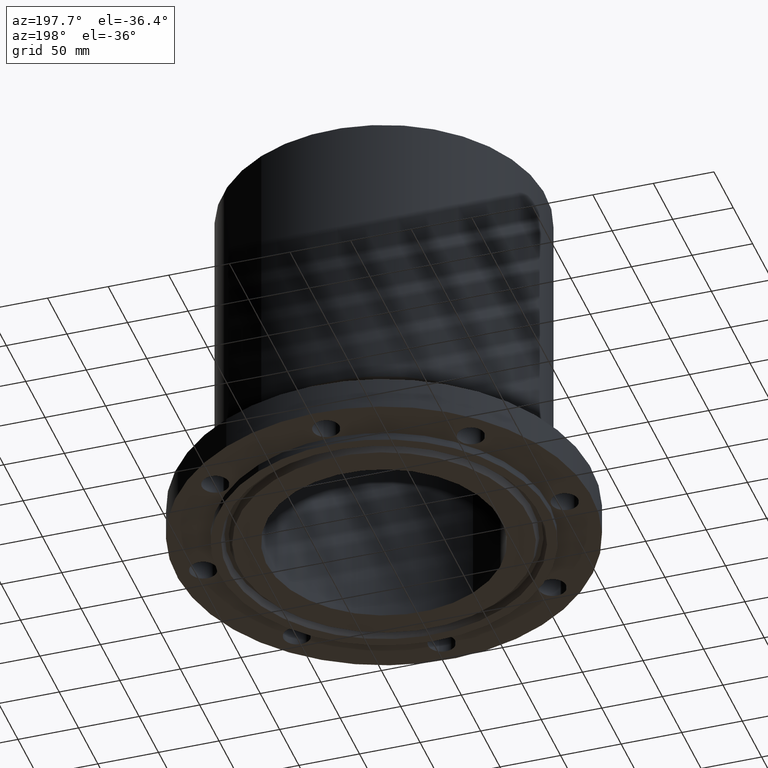
[diagram: clean part render]
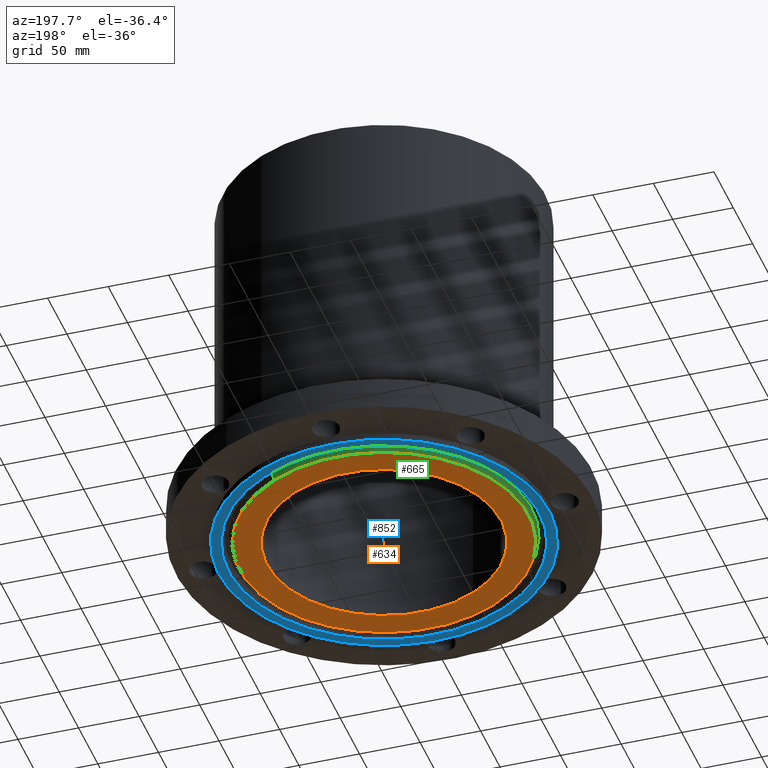
[diagram: same view with three faces highlighted in distinct colors, each labeled with its STEP entity id]
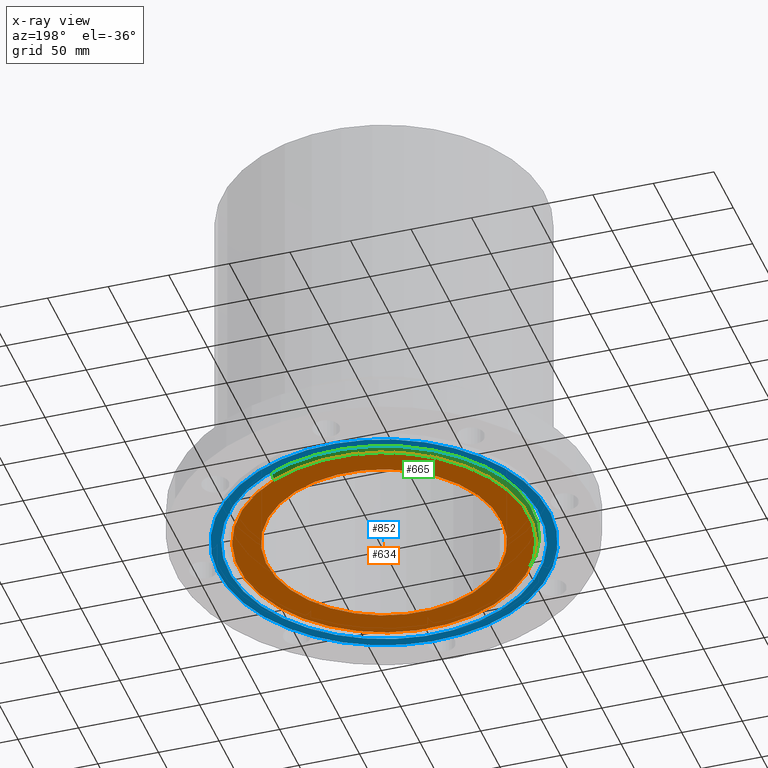
[diagram: x-ray of the same camera — body ghosted, the three highlighted faces saturated]
A machine part, auxiliary view with three faces highlighted in distinct colors.
The next image is the same camera in x-ray (body ghosted, the three faces saturated) — at least one of them is partly hidden behind the body in this view.
Their STEP definitions:

[orange] entity #634 — the highlighted planar face has unit normal (0, 0, -1).
#578=AXIS2_PLACEMENT_3D('Circle Axis2P3D',#576,#577,$) ;
#597=AXIS2_PLACEMENT_3D('Circle Axis2P3D',#595,#596,$) ;
#610=AXIS2_PLACEMENT_3D('Plane Axis2P3D',#607,#608,#609) ;
#614=AXIS2_PLACEMENT_3D('Circle Axis2P3D',#612,#613,$) ;
#623=AXIS2_PLACEMENT_3D('Circle Axis2P3D',#621,#622,$) ;
#573=CARTESIAN_POINT('Vertex',(1.82661130209,3.34358956082,-0.250000000001)) ;
#576=CARTESIAN_POINT('Axis2P3D Location',(0.,0.,-0.250000000001)) ;
#580=CARTESIAN_POINT('Vertex',(-1.82661130209,-3.34358956082,-0.250000000001)) ;
#595=CARTESIAN_POINT('Axis2P3D Location',(0.,0.,-0.250000000001)) ;
#607=CARTESIAN_POINT('Axis2P3D Location',(0.,4.70300000002,-0.250000000001)) ;
#612=CARTESIAN_POINT('Axis2P3D Location',(0.,0.,-0.250000000001)) ;
#616=CARTESIAN_POINT('Vertex',(-2.25473830806,-4.12727078859,-0.250000000001)) ;
#618=CARTESIAN_POINT('Vertex',(2.25473830806,4.12727078859,-0.250000000001)) ;
#621=CARTESIAN_POINT('Axis2P3D Location',(0.,0.,-0.250000000001)) ;
#577=DIRECTION('Axis2P3D Direction',(0.,0.,-0.0393700787402)) ;
#596=DIRECTION('Axis2P3D Direction',(0.,0.,-0.0393700787402)) ;
#608=DIRECTION('Axis2P3D Direction',(0.,0.,-0.0393700787402)) ;
#609=DIRECTION('Axis2P3D XDirection',(0.0393700787402,0.,0.)) ;
#613=DIRECTION('Axis2P3D Direction',(0.,0.,-0.0393700787402)) ;
#622=DIRECTION('Axis2P3D Direction',(0.,0.,-0.0393700787402)) ;
#627=ORIENTED_EDGE('',*,*,#620,.T.) ;
#628=ORIENTED_EDGE('',*,*,#625,.T.) ;
#631=ORIENTED_EDGE('',*,*,#582,.F.) ;
#632=ORIENTED_EDGE('',*,*,#599,.F.) ;
#633=FACE_BOUND('',#630,.T.) ;
#634=ADVANCED_FACE('PartBody',(#629,#633),#611,.T.) ;
#579=CIRCLE('generated circle',#578,3.81000000002) ;
#598=CIRCLE('generated circle',#597,3.81000000002) ;
#615=CIRCLE('generated circle',#614,4.70300000002) ;
#624=CIRCLE('generated circle',#623,4.70300000002) ;
#582=EDGE_CURVE('',#574,#581,#579,.T.) ;
#599=EDGE_CURVE('',#581,#574,#598,.T.) ;
#620=EDGE_CURVE('',#617,#619,#615,.T.) ;
#625=EDGE_CURVE('',#619,#617,#624,.T.) ;
#626=EDGE_LOOP('',(#627,#628)) ;
#630=EDGE_LOOP('',(#631,#632)) ;
#629=FACE_OUTER_BOUND('',#626,.T.) ;
#611=PLANE('',#610) ;
#574=VERTEX_POINT('',#573) ;
#581=VERTEX_POINT('',#580) ;
#617=VERTEX_POINT('',#616) ;
#619=VERTEX_POINT('',#618) ;

[blue] entity #852 — the highlighted planar face has unit normal (0, 0, -1).
#610=AXIS2_PLACEMENT_3D('Plane Axis2P3D',#607,#608,#609) ;
#801=AXIS2_PLACEMENT_3D('Circle Axis2P3D',#799,#800,$) ;
#820=AXIS2_PLACEMENT_3D('Circle Axis2P3D',#818,#819,$) ;
#832=AXIS2_PLACEMENT_3D('Circle Axis2P3D',#830,#831,$) ;
#841=AXIS2_PLACEMENT_3D('Circle Axis2P3D',#839,#840,$) ;
#607=CARTESIAN_POINT('Axis2P3D Location',(0.,4.70300000002,-0.250000000001)) ;
#796=CARTESIAN_POINT('Vertex',(-2.41966069335,-4.42915918988,-0.250000000001)) ;
#799=CARTESIAN_POINT('Axis2P3D Location',(0.,0.,-0.250000000001)) ;
#803=CARTESIAN_POINT('Vertex',(2.41966069335,4.42915918988,-0.250000000001)) ;
#818=CARTESIAN_POINT('Axis2P3D Location',(0.,0.,-0.250000000001)) ;
#830=CARTESIAN_POINT('Axis2P3D Location',(0.,0.,-0.250000000001)) ;
#834=CARTESIAN_POINT('Vertex',(-2.57691227001,-4.71700627018,-0.250000000001)) ;
#836=CARTESIAN_POINT('Vertex',(2.57691227001,4.71700627018,-0.250000000001)) ;
#839=CARTESIAN_POINT('Axis2P3D Location',(0.,0.,-0.250000000001)) ;
#608=DIRECTION('Axis2P3D Direction',(0.,0.,-0.0393700787402)) ;
#609=DIRECTION('Axis2P3D XDirection',(0.0393700787402,0.,0.)) ;
#800=DIRECTION('Axis2P3D Direction',(0.,0.,-0.0393700787402)) ;
#819=DIRECTION('Axis2P3D Direction',(0.,0.,-0.0393700787402)) ;
#831=DIRECTION('Axis2P3D Direction',(0.,0.,-0.0393700787402)) ;
#840=DIRECTION('Axis2P3D Direction',(0.,0.,-0.0393700787402)) ;
#845=ORIENTED_EDGE('',*,*,#838,.T.) ;
#846=ORIENTED_EDGE('',*,*,#843,.T.) ;
#849=ORIENTED_EDGE('',*,*,#822,.F.) ;
#850=ORIENTED_EDGE('',*,*,#805,.F.) ;
#851=FACE_BOUND('',#848,.T.) ;
#852=ADVANCED_FACE('PartBody',(#847,#851),#611,.T.) ;
#802=CIRCLE('generated circle',#801,5.04700000002) ;
#821=CIRCLE('generated circle',#820,5.04700000002) ;
#833=CIRCLE('generated circle',#832,5.37500000002) ;
#842=CIRCLE('generated circle',#841,5.37500000002) ;
#805=EDGE_CURVE('',#797,#804,#802,.T.) ;
#822=EDGE_CURVE('',#804,#797,#821,.T.) ;
#838=EDGE_CURVE('',#835,#837,#833,.T.) ;
#843=EDGE_CURVE('',#837,#835,#842,.T.) ;
#844=EDGE_LOOP('',(#845,#846)) ;
#848=EDGE_LOOP('',(#849,#850)) ;
#847=FACE_OUTER_BOUND('',#844,.T.) ;
#611=PLANE('',#610) ;
#797=VERTEX_POINT('',#796) ;
#804=VERTEX_POINT('',#803) ;
#835=VERTEX_POINT('',#834) ;
#837=VERTEX_POINT('',#836) ;

[green] entity #665 — the highlighted conical surface has half-angle 23 deg.
#614=AXIS2_PLACEMENT_3D('Circle Axis2P3D',#612,#613,$) ;
#638=AXIS2_PLACEMENT_3D('Cone Axis2P3D',#635,#636,#637) ;
#649=AXIS2_PLACEMENT_3D('Circle Axis2P3D',#647,#648,$) ;
#612=CARTESIAN_POINT('Axis2P3D Location',(0.,0.,-0.250000000001)) ;
#616=CARTESIAN_POINT('Vertex',(-2.25473830806,-4.12727078859,-0.250000000001)) ;
#618=CARTESIAN_POINT('Vertex',(2.25473830806,4.12727078859,-0.250000000001)) ;
#635=CARTESIAN_POINT('Axis2P3D Location',(0.,0.,-0.250000000001)) ;
#640=CARTESIAN_POINT('Line Origine',(-2.27825449174,-4.17031687406,-0.134443667509)) ;
#644=CARTESIAN_POINT('Vertex',(-2.30177067541,-4.21336295954,-0.0188873350169)) ;
#647=CARTESIAN_POINT('Axis2P3D Location',(0.,0.,-0.0188873350169)) ;
#651=CARTESIAN_POINT('Vertex',(2.30177067541,4.21336295954,-0.0188873350169)) ;
#654=CARTESIAN_POINT('Line Origine',(2.27825449174,4.17031687406,-0.134443667509)) ;
#613=DIRECTION('Axis2P3D Direction',(0.,0.,-0.0393700787402)) ;
#636=DIRECTION('Axis2P3D Direction',(-0.,-0.,0.0393700787402)) ;
#637=DIRECTION('Axis2P3D XDirection',(-0.0188750212049,-0.0345504945626,0.)) ;
#641=DIRECTION('Vector Direction',(-0.00737505833565,-0.0134999537303,0.0362403485611)) ;
#648=DIRECTION('Axis2P3D Direction',(-0.,0.,0.0393700787402)) ;
#655=DIRECTION('Vector Direction',(0.00737505833565,0.0134999537303,0.0362403485611)) ;
#642=VECTOR('Line Direction',#641,0.0393700787402) ;
#656=VECTOR('Line Direction',#655,0.0393700787402) ;
#660=ORIENTED_EDGE('',*,*,#620,.F.) ;
#661=ORIENTED_EDGE('',*,*,#646,.T.) ;
#662=ORIENTED_EDGE('',*,*,#653,.T.) ;
#663=ORIENTED_EDGE('',*,*,#658,.F.) ;
#665=ADVANCED_FACE('PartBody',(#664),#639,.T.) ;
#615=CIRCLE('generated circle',#614,4.70300000002) ;
#650=CIRCLE('generated circle',#649,4.80110150601) ;
#639=CONICAL_SURFACE('Cone',#638,4.70300000002,0.401425727959) ;
#620=EDGE_CURVE('',#617,#619,#615,.T.) ;
#646=EDGE_CURVE('',#617,#645,#643,.T.) ;
#653=EDGE_CURVE('',#645,#652,#650,.F.) ;
#658=EDGE_CURVE('',#619,#652,#657,.T.) ;
#659=EDGE_LOOP('',(#660,#661,#662,#663)) ;
#664=FACE_OUTER_BOUND('',#659,.T.) ;
#643=LINE('Line',#640,#642) ;
#657=LINE('Line',#654,#656) ;
#617=VERTEX_POINT('',#616) ;
#619=VERTEX_POINT('',#618) ;
#645=VERTEX_POINT('',#644) ;
#652=VERTEX_POINT('',#651) ;